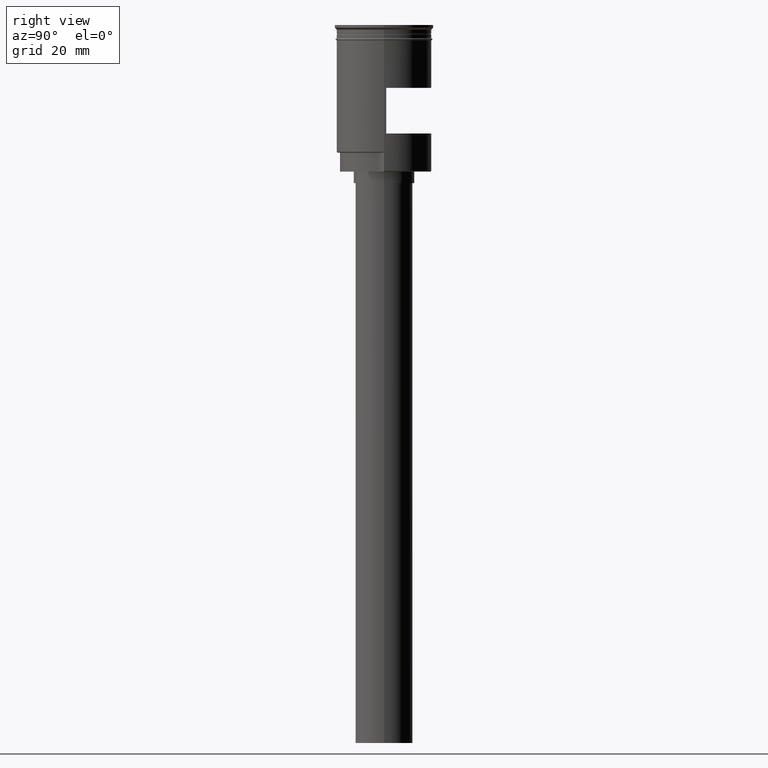
[diagram: clean part render]
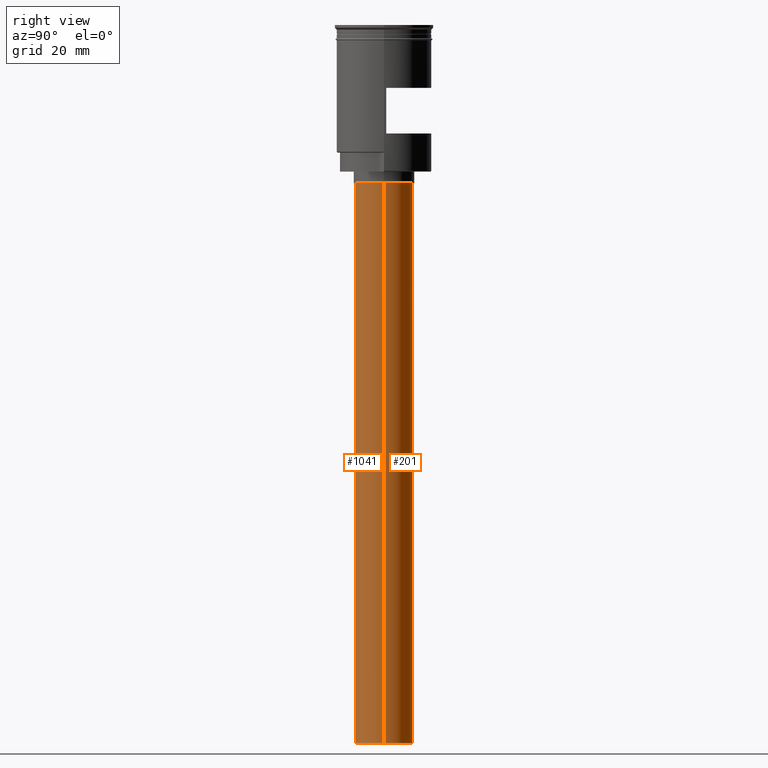
[diagram: same view with one multi-face feature highlighted, each face labeled with its STEP entity id]
A machine part, right view. The highlighted faces form ONE feature: a constant-radius fillet chain: 2 tangent blend faces with common blend radius 7.5 mm. The faces share edges in the B-rep.
Their STEP definitions:
[1] entity #1041 (Cylinder):
#34 = DIRECTION ( 'NONE',  ( -0.000000000000000000, -0.000000000000000000, 1.000000000000000000 ) ) ;
#98 = CARTESIAN_POINT ( 'NONE',  ( 7.500000000000000000, 0.000000000000000000, -188.5000000000000000 ) ) ;
#103 = CARTESIAN_POINT ( 'NONE',  ( -7.500000000000000000, 9.184850993605147944E-16, -188.5000000000000000 ) ) ;
#132 = EDGE_CURVE ( 'NONE', #1140, #960, #561, .T. ) ;
#136 = CIRCLE ( 'NONE', #510, 7.500000000000000000 ) ;
#225 = DIRECTION ( 'NONE',  ( -0.000000000000000000, -0.000000000000000000, 1.000000000000000000 ) ) ;
#242 = LINE ( 'NONE', #103, #1387 ) ;
#262 = DIRECTION ( 'NONE',  ( -0.000000000000000000, -0.000000000000000000, 1.000000000000000000 ) ) ;
#279 = CARTESIAN_POINT ( 'NONE',  ( 0.000000000000000000, 0.000000000000000000, -41.50000000000000000 ) ) ;
#433 = ORIENTED_EDGE ( 'NONE', *, *, #132, .T. ) ;
#467 = ORIENTED_EDGE ( 'NONE', *, *, #1520, .T. ) ;
#504 = CIRCLE ( 'NONE', #1097, 7.500000000000000000 ) ;
#510 = AXIS2_PLACEMENT_3D ( 'NONE', #1451, #719, #606 ) ;
#561 = LINE ( 'NONE', #1410, #657 ) ;
#606 = DIRECTION ( 'NONE',  ( -1.000000000000000000, 0.000000000000000000, 0.000000000000000000 ) ) ;
#608 = DIRECTION ( 'NONE',  ( 1.000000000000000000, 0.000000000000000000, 0.000000000000000000 ) ) ;
#657 = VECTOR ( 'NONE', #34, 1000.000000000000000 ) ;
#677 = EDGE_CURVE ( 'NONE', #1270, #1389, #242, .T. ) ;
#692 = CARTESIAN_POINT ( 'NONE',  ( -7.500000000000000000, 9.184850993605147944E-16, -188.5000000000000000 ) ) ;
#719 = DIRECTION ( 'NONE',  ( 0.000000000000000000, 0.000000000000000000, -1.000000000000000000 ) ) ;
#781 = ORIENTED_EDGE ( 'NONE', *, *, #677, .F. ) ;
#818 = CARTESIAN_POINT ( 'NONE',  ( 7.500000000000000000, 0.000000000000000000, -41.50000000000000000 ) ) ;
#904 = DIRECTION ( 'NONE',  ( 0.000000000000000000, 0.000000000000000000, -1.000000000000000000 ) ) ;
#960 = VERTEX_POINT ( 'NONE', #818 ) ;
#1007 = CARTESIAN_POINT ( 'NONE',  ( -7.500000000000000000, 9.184850993605147944E-16, -41.50000000000000000 ) ) ;
#1041 = ADVANCED_FACE ( 'NONE', ( #1466 ), #1597, .T. ) ;
#1097 = AXIS2_PLACEMENT_3D ( 'NONE', #279, #904, #1509 ) ;
#1140 = VERTEX_POINT ( 'NONE', #98 ) ;
#1144 = EDGE_CURVE ( 'NONE', #1140, #1270, #136, .T. ) ;
#1247 = ORIENTED_EDGE ( 'NONE', *, *, #1144, .F. ) ;
#1270 = VERTEX_POINT ( 'NONE', #692 ) ;
#1387 = VECTOR ( 'NONE', #262, 1000.000000000000000 ) ;
#1389 = VERTEX_POINT ( 'NONE', #1007 ) ;
#1404 = AXIS2_PLACEMENT_3D ( 'NONE', #1453, #225, #608 ) ;
#1410 = CARTESIAN_POINT ( 'NONE',  ( 7.500000000000000000, 0.000000000000000000, -188.5000000000000000 ) ) ;
#1451 = CARTESIAN_POINT ( 'NONE',  ( 0.000000000000000000, 0.000000000000000000, -188.5000000000000000 ) ) ;
#1453 = CARTESIAN_POINT ( 'NONE',  ( 0.000000000000000000, 0.000000000000000000, -188.5000000000000000 ) ) ;
#1466 = FACE_OUTER_BOUND ( 'NONE', #1525, .T. ) ;
#1509 = DIRECTION ( 'NONE',  ( -1.000000000000000000, 0.000000000000000000, 0.000000000000000000 ) ) ;
#1520 = EDGE_CURVE ( 'NONE', #960, #1389, #504, .T. ) ;
#1525 = EDGE_LOOP ( 'NONE', ( #781, #1247, #433, #467 ) ) ;
#1597 = CYLINDRICAL_SURFACE ( 'NONE', #1404, 7.500000000000000000 ) ;
[2] entity #201 (Cylinder):
#34 = DIRECTION ( 'NONE',  ( -0.000000000000000000, -0.000000000000000000, 1.000000000000000000 ) ) ;
#41 = DIRECTION ( 'NONE',  ( 0.000000000000000000, 0.000000000000000000, -1.000000000000000000 ) ) ;
#98 = CARTESIAN_POINT ( 'NONE',  ( 7.500000000000000000, 0.000000000000000000, -188.5000000000000000 ) ) ;
#103 = CARTESIAN_POINT ( 'NONE',  ( -7.500000000000000000, 9.184850993605147944E-16, -188.5000000000000000 ) ) ;
#132 = EDGE_CURVE ( 'NONE', #1140, #960, #561, .T. ) ;
#201 = ADVANCED_FACE ( 'NONE', ( #538 ), #436, .T. ) ;
#242 = LINE ( 'NONE', #103, #1387 ) ;
#258 = EDGE_CURVE ( 'NONE', #1389, #960, #738, .T. ) ;
#262 = DIRECTION ( 'NONE',  ( -0.000000000000000000, -0.000000000000000000, 1.000000000000000000 ) ) ;
#271 = AXIS2_PLACEMENT_3D ( 'NONE', #462, #1079, #963 ) ;
#436 = CYLINDRICAL_SURFACE ( 'NONE', #1280, 7.500000000000000000 ) ;
#462 = CARTESIAN_POINT ( 'NONE',  ( 0.000000000000000000, 0.000000000000000000, -41.50000000000000000 ) ) ;
#538 = FACE_OUTER_BOUND ( 'NONE', #1276, .T. ) ;
#549 = DIRECTION ( 'NONE',  ( 1.000000000000000000, 0.000000000000000000, 0.000000000000000000 ) ) ;
#551 = AXIS2_PLACEMENT_3D ( 'NONE', #1149, #41, #1507 ) ;
#561 = LINE ( 'NONE', #1410, #657 ) ;
#651 = CARTESIAN_POINT ( 'NONE',  ( 0.000000000000000000, 0.000000000000000000, -188.5000000000000000 ) ) ;
#657 = VECTOR ( 'NONE', #34, 1000.000000000000000 ) ;
#677 = EDGE_CURVE ( 'NONE', #1270, #1389, #242, .T. ) ;
#683 = ORIENTED_EDGE ( 'NONE', *, *, #132, .F. ) ;
#692 = CARTESIAN_POINT ( 'NONE',  ( -7.500000000000000000, 9.184850993605147944E-16, -188.5000000000000000 ) ) ;
#738 = CIRCLE ( 'NONE', #271, 7.500000000000000000 ) ;
#818 = CARTESIAN_POINT ( 'NONE',  ( 7.500000000000000000, 0.000000000000000000, -41.50000000000000000 ) ) ;
#881 = EDGE_CURVE ( 'NONE', #1270, #1140, #996, .T. ) ;
#960 = VERTEX_POINT ( 'NONE', #818 ) ;
#963 = DIRECTION ( 'NONE',  ( -1.000000000000000000, 0.000000000000000000, 0.000000000000000000 ) ) ;
#989 = ORIENTED_EDGE ( 'NONE', *, *, #881, .F. ) ;
#996 = CIRCLE ( 'NONE', #551, 7.500000000000000000 ) ;
#1007 = CARTESIAN_POINT ( 'NONE',  ( -7.500000000000000000, 9.184850993605147944E-16, -41.50000000000000000 ) ) ;
#1079 = DIRECTION ( 'NONE',  ( 0.000000000000000000, 0.000000000000000000, -1.000000000000000000 ) ) ;
#1140 = VERTEX_POINT ( 'NONE', #98 ) ;
#1149 = CARTESIAN_POINT ( 'NONE',  ( 0.000000000000000000, 0.000000000000000000, -188.5000000000000000 ) ) ;
#1240 = ORIENTED_EDGE ( 'NONE', *, *, #258, .T. ) ;
#1270 = VERTEX_POINT ( 'NONE', #692 ) ;
#1276 = EDGE_LOOP ( 'NONE', ( #989, #1599, #1240, #683 ) ) ;
#1280 = AXIS2_PLACEMENT_3D ( 'NONE', #651, #1395, #549 ) ;
#1387 = VECTOR ( 'NONE', #262, 1000.000000000000000 ) ;
#1389 = VERTEX_POINT ( 'NONE', #1007 ) ;
#1395 = DIRECTION ( 'NONE',  ( -0.000000000000000000, -0.000000000000000000, 1.000000000000000000 ) ) ;
#1410 = CARTESIAN_POINT ( 'NONE',  ( 7.500000000000000000, 0.000000000000000000, -188.5000000000000000 ) ) ;
#1507 = DIRECTION ( 'NONE',  ( -1.000000000000000000, 0.000000000000000000, 0.000000000000000000 ) ) ;
#1599 = ORIENTED_EDGE ( 'NONE', *, *, #677, .T. ) ;